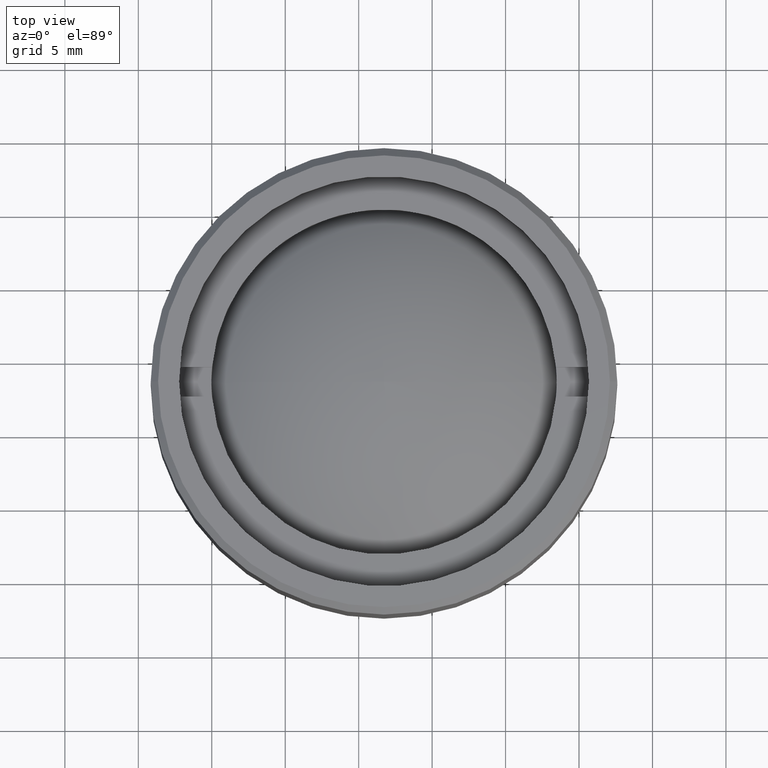
[diagram: clean part render]
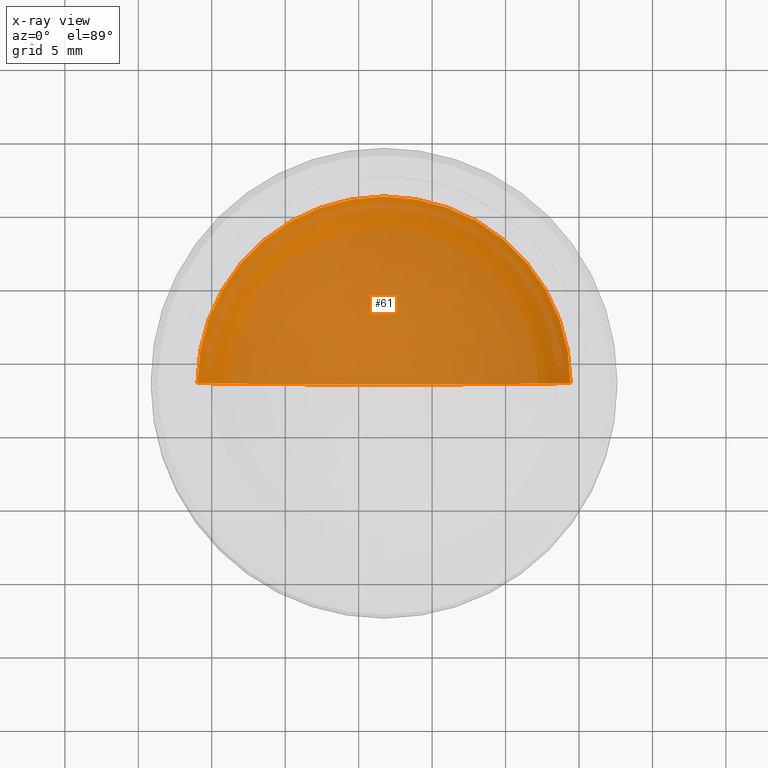
[diagram: x-ray — body ghosted, one internal face saturated and labeled with its STEP entity id]
A machine part, top view, then the same camera in x-ray: the body is ghosted and one INTERNAL B-rep face — a face not visible from any outside direction — is saturated and labeled: STEP entity #61.
In plain terms, the highlighted spherical surface has radius 16.7 mm.
Its self-contained STEP definition (entity closure, byte-faithful):
#41 = DIRECTION ( 'NONE',  ( 1.224646799147351975E-16, -1.000000000000000000, -1.169812630476250084E-32 ) ) ;
#61 = ADVANCED_FACE ( 'NONE', ( #1476 ), #305, .T. ) ;
#132 = DIRECTION ( 'NONE',  ( -6.829619984160659279E-17, 0.000000000000000000, -1.000000000000000000 ) ) ;
#142 = CARTESIAN_POINT ( 'NONE',  ( 12.69999999999999929, 0.000000000000000000, -6.144353369380770147 ) ) ;
#159 = CARTESIAN_POINT ( 'NONE',  ( -12.69999999999999929, -1.555301434917139813E-15, -6.144353369380770147 ) ) ;
#174 = AXIS2_PLACEMENT_3D ( 'NONE', #661, #132, #667 ) ;
#305 = SPHERICAL_SURFACE ( 'NONE', #1670, 16.69999999999999929 ) ;
#396 = VERTEX_POINT ( 'NONE', #142 ) ;
#498 = VERTEX_POINT ( 'NONE', #159 ) ;
#660 = ORIENTED_EDGE ( 'NONE', *, *, #1303, .F. ) ;
#661 = CARTESIAN_POINT ( 'NONE',  ( -5.869236895581080328E-16, 0.000000000000000000, -6.144353369380770147 ) ) ;
#667 = DIRECTION ( 'NONE',  ( -1.000000000000000000, 0.000000000000000000, 6.829619984160658046E-17 ) ) ;
#696 = CIRCLE ( 'NONE', #174, 12.69999999999999929 ) ;
#733 = EDGE_LOOP ( 'NONE', ( #660, #1306 ) ) ;
#777 = AXIS2_PLACEMENT_3D ( 'NONE', #1363, #41, #1246 ) ;
#815 = DIRECTION ( 'NONE',  ( 1.038756572441201875E-16, 0.000000000000000000, 1.000000000000000000 ) ) ;
#1231 = CARTESIAN_POINT ( 'NONE',  ( 0.000000000000000000, 0.000000000000000000, 4.700000000000000178 ) ) ;
#1246 = DIRECTION ( 'NONE',  ( 1.000000000000000000, 1.224646799147351728E-16, 0.000000000000000000 ) ) ;
#1303 = EDGE_CURVE ( 'NONE', #498, #396, #1648, .T. ) ;
#1306 = ORIENTED_EDGE ( 'NONE', *, *, #1619, .T. ) ;
#1340 = DIRECTION ( 'NONE',  ( 1.000000000000000000, 0.000000000000000000, -1.038756572441201875E-16 ) ) ;
#1363 = CARTESIAN_POINT ( 'NONE',  ( 0.000000000000000000, 0.000000000000000000, 4.700000000000000178 ) ) ;
#1476 = FACE_OUTER_BOUND ( 'NONE', #733, .T. ) ;
#1619 = EDGE_CURVE ( 'NONE', #498, #396, #696, .T. ) ;
#1648 = CIRCLE ( 'NONE', #777, 16.69999999999999929 ) ;
#1670 = AXIS2_PLACEMENT_3D ( 'NONE', #1231, #815, #1340 ) ;